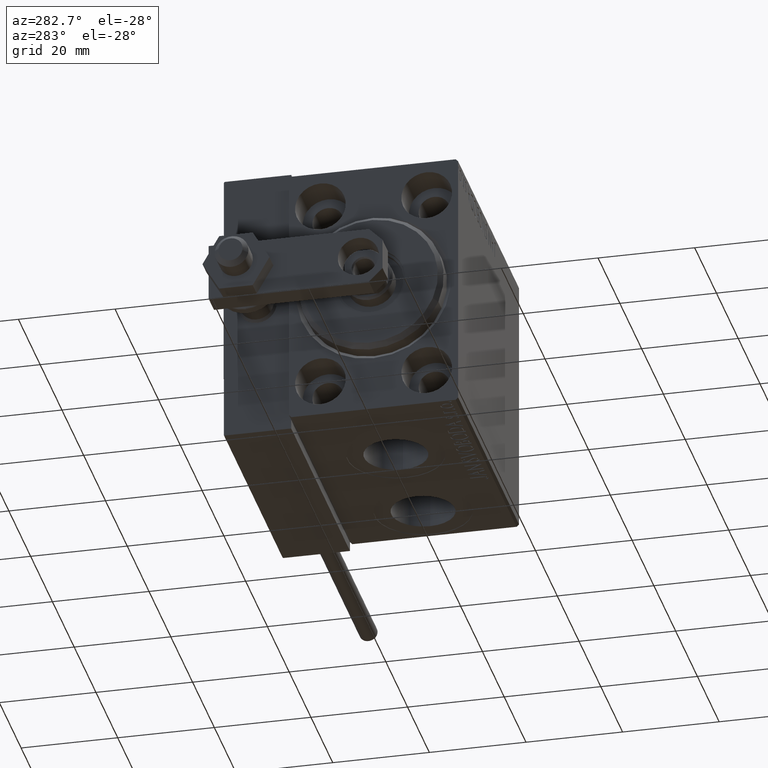
[diagram: clean part render]
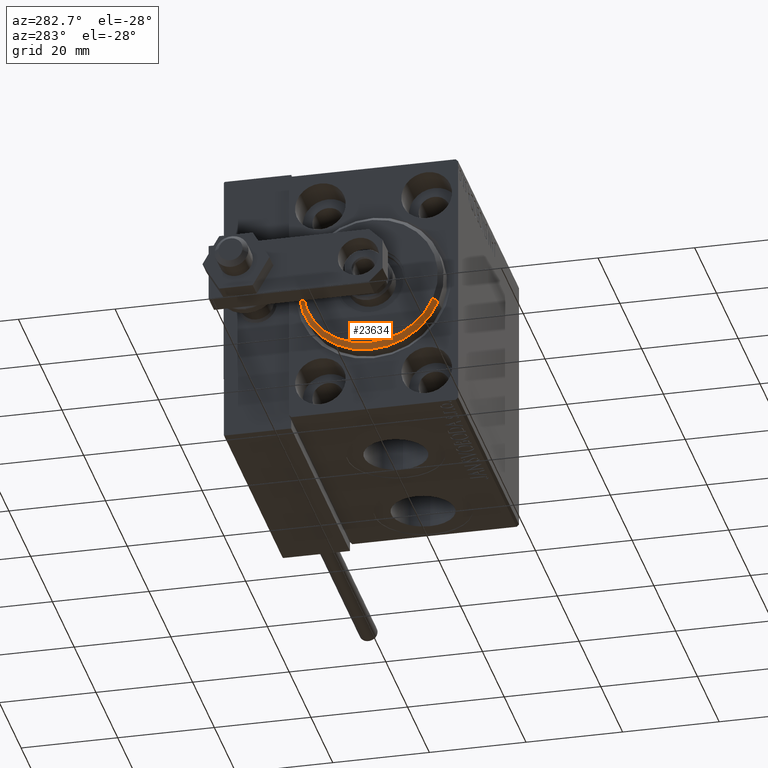
[diagram: same view with one face highlighted and labeled with its STEP entity id]
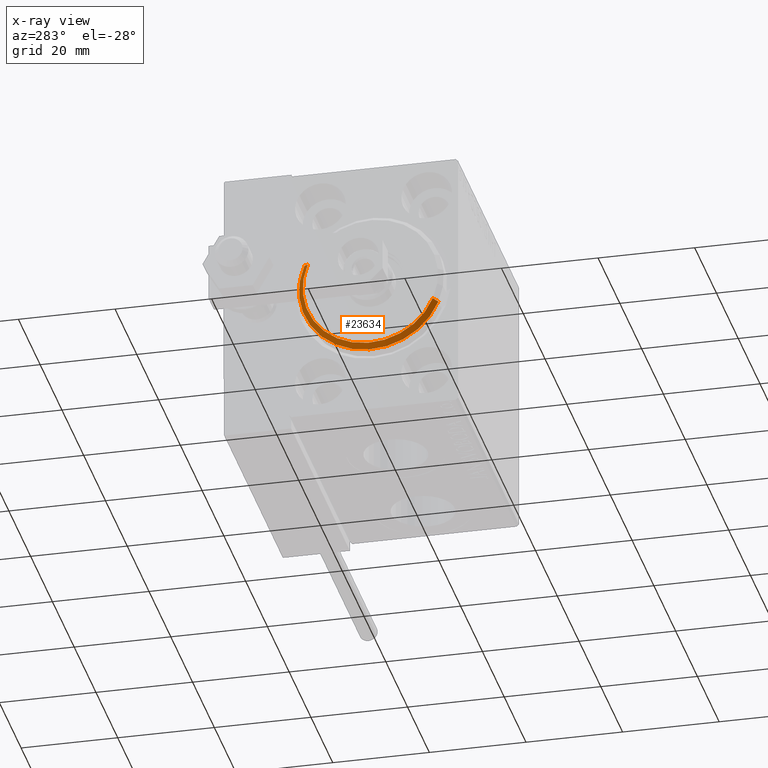
[diagram: x-ray of the same camera — body ghosted, the highlighted face saturated]
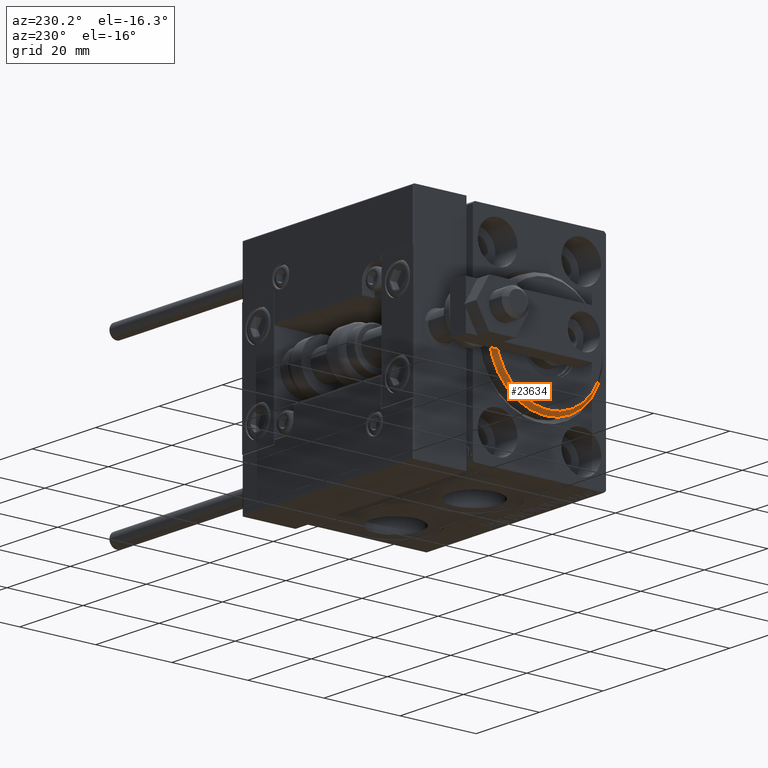
[diagram: same view with one face highlighted and labeled with its STEP entity id]
A machine part, auxiliary view. The second image highlights one B-rep face of the part: STEP entity #23634.
The next image is the same camera in x-ray: the body ghosted, the highlighted face saturated — about 0% of this face is hidden behind the body in this view.
A second angle (auxiliary view) of the same face is appended — the face is thin or edge-on in the first view.
In plain terms, the highlighted conical surface has half-angle 45 deg.
Its self-contained STEP definition (entity closure, byte-faithful):
#2298 = AXIS2_PLACEMENT_3D ( 'NONE', #42356, #10289, #37517 ) ;
#4949 = EDGE_CURVE ( 'NONE', #23233, #42647, #45740, .T. ) ;
#4977 = CARTESIAN_POINT ( 'NONE',  ( 3.000000000000000000, 0.000000000000000000, 0.000000000000000000 ) ) ;
#6714 = FACE_OUTER_BOUND ( 'NONE', #38062, .T. ) ;
#6734 = ORIENTED_EDGE ( 'NONE', *, *, #35353, .T. ) ;
#7190 = DIRECTION ( 'NONE',  ( -0.7071067811865482389, 0.000000000000000000, 0.7071067811865469066 ) ) ;
#8915 = DIRECTION ( 'NONE',  ( -0.7071067811865482389, 8.659560562354926695E-17, -0.7071067811865469066 ) ) ;
#10289 = DIRECTION ( 'NONE',  ( -1.000000000000000000, 0.000000000000000000, 0.000000000000000000 ) ) ;
#13687 = CARTESIAN_POINT ( 'NONE',  ( 1.999999999999995781, 1.836970198721029589E-15, -15.00000000000000000 ) ) ;
#14078 = VERTEX_POINT ( 'NONE', #48113 ) ;
#14080 = DIRECTION ( 'NONE',  ( -1.000000000000000000, 0.000000000000000000, 0.000000000000000000 ) ) ;
#14344 = CARTESIAN_POINT ( 'NONE',  ( 1.999999999999995781, 0.000000000000000000, 0.000000000000000000 ) ) ;
#15046 = CARTESIAN_POINT ( 'NONE',  ( 1.999999999999995781, 0.000000000000000000, 15.00000000000000000 ) ) ;
#18161 = DIRECTION ( 'NONE',  ( 0.000000000000000000, 0.000000000000000000, -1.000000000000000000 ) ) ;
#21253 = ORIENTED_EDGE ( 'NONE', *, *, #31681, .F. ) ;
#23233 = VERTEX_POINT ( 'NONE', #15046 ) ;
#23634 = ADVANCED_FACE ( 'NONE', ( #6714 ), #41371, .T. ) ;
#23665 = VECTOR ( 'NONE', #8915, 999.9999999999998863 ) ;
#24339 = DIRECTION ( 'NONE',  ( 0.000000000000000000, 0.000000000000000000, -1.000000000000000000 ) ) ;
#24930 = CARTESIAN_POINT ( 'NONE',  ( 3.000000000000000000, 1.714505518806294244E-15, -13.99999999999999645 ) ) ;
#26035 = LINE ( 'NONE', #45635, #30118 ) ;
#26594 = ORIENTED_EDGE ( 'NONE', *, *, #4949, .F. ) ;
#28990 = VERTEX_POINT ( 'NONE', #43600 ) ;
#30118 = VECTOR ( 'NONE', #7190, 999.9999999999998863 ) ;
#31681 = EDGE_CURVE ( 'NONE', #14078, #23233, #26035, .T. ) ;
#31792 = CIRCLE ( 'NONE', #42375, 13.99999999999999645 ) ;
#35353 = EDGE_CURVE ( 'NONE', #28990, #42647, #47845, .T. ) ;
#36775 = AXIS2_PLACEMENT_3D ( 'NONE', #14344, #14080, #18161 ) ;
#37517 = DIRECTION ( 'NONE',  ( 0.000000000000000000, 0.000000000000000000, 1.000000000000000000 ) ) ;
#38062 = EDGE_LOOP ( 'NONE', ( #38513, #6734, #26594, #21253 ) ) ;
#38513 = ORIENTED_EDGE ( 'NONE', *, *, #39399, .F. ) ;
#39399 = EDGE_CURVE ( 'NONE', #28990, #14078, #31792, .T. ) ;
#41371 = CONICAL_SURFACE ( 'NONE', #2298, 13.99999999999999645, 0.7853981633974473908 ) ;
#42356 = CARTESIAN_POINT ( 'NONE',  ( 3.000000000000000000, 0.000000000000000000, 0.000000000000000000 ) ) ;
#42375 = AXIS2_PLACEMENT_3D ( 'NONE', #4977, #43940, #24339 ) ;
#42647 = VERTEX_POINT ( 'NONE', #13687 ) ;
#43600 = CARTESIAN_POINT ( 'NONE',  ( 3.000000000000000000, 1.775737858763662015E-15, -13.99999999999999645 ) ) ;
#43940 = DIRECTION ( 'NONE',  ( 1.000000000000000000, -0.000000000000000000, 0.000000000000000000 ) ) ;
#45635 = CARTESIAN_POINT ( 'NONE',  ( 3.000000000000000000, 0.000000000000000000, 13.99999999999999645 ) ) ;
#45740 = CIRCLE ( 'NONE', #36775, 15.00000000000000000 ) ;
#47845 = LINE ( 'NONE', #24930, #23665 ) ;
#48113 = CARTESIAN_POINT ( 'NONE',  ( 3.000000000000000000, 0.000000000000000000, 13.99999999999999645 ) ) ;